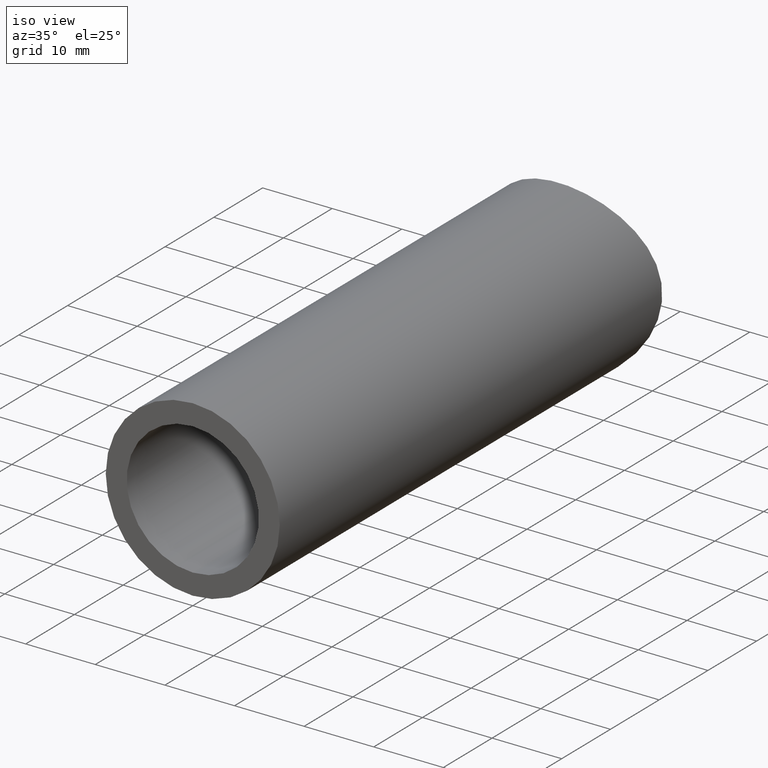
[diagram: clean part render]
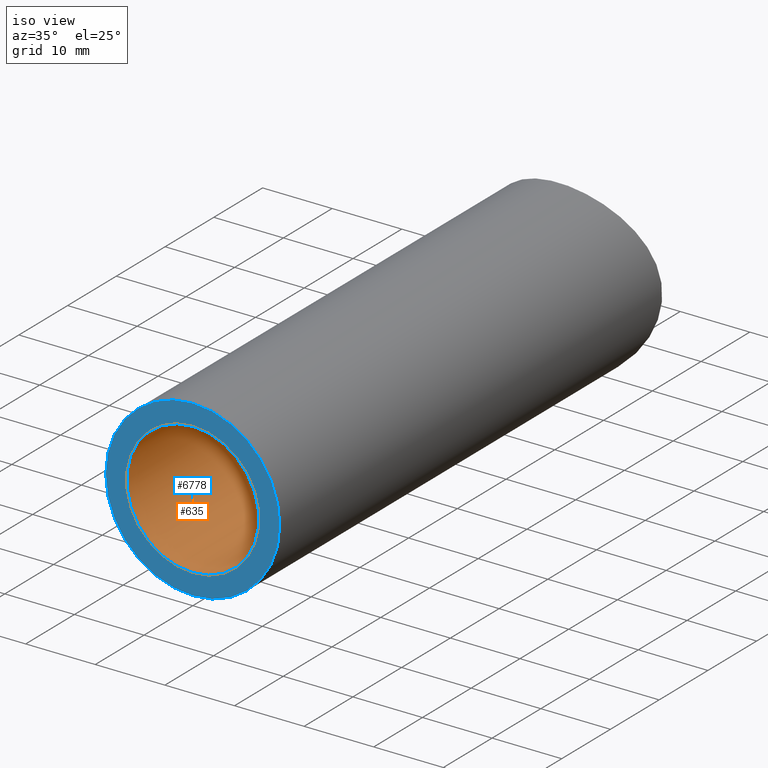
[diagram: same view with the hole feature highlighted: cylindrical wall and planar end face, labeled with their STEP entity ids]
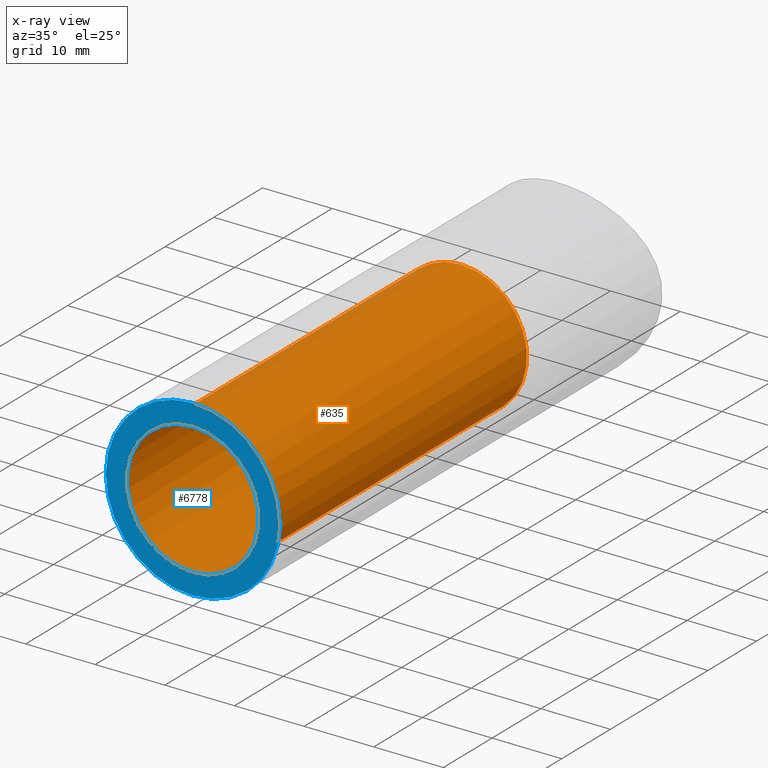
[diagram: x-ray of the same camera — body ghosted, the hole faces saturated]
A machine part, iso view. The highlighted faces form one hole feature of diameter 19 mm: the cylindrical wall (entity #635, orange) and its adjacent planar end face (entity #6778, blue) — they share a circular edge in the B-rep.
The next image is the same camera in x-ray (body ghosted, the hole faces saturated) — the bore reads through the body.
Wall:
#449 = CARTESIAN_POINT ( 'NONE',  ( 0.000000000000000000, 55.00000000000000711, 0.000000000000000000 ) ) ;
#635 = ADVANCED_FACE ( 'NONE', ( #975, #4737 ), #12967, .F. ) ;
#975 = FACE_OUTER_BOUND ( 'NONE', #10401, .T. ) ;
#979 = CARTESIAN_POINT ( 'NONE',  ( 0.000000000000000000, 99.15000000000000568, 0.000000000000000000 ) ) ;
#1289 = CIRCLE ( 'NONE', #7099, 9.500000000000000000 ) ;
#2854 = DIRECTION ( 'NONE',  ( 0.000000000000000000, 1.000000000000000000, 0.000000000000000000 ) ) ;
#2900 = CARTESIAN_POINT ( 'NONE',  ( 0.000000000000000000, 0.000000000000000000, 0.000000000000000000 ) ) ;
#3305 = CIRCLE ( 'NONE', #13916, 9.500000000000000000 ) ;
#4407 = DIRECTION ( 'NONE',  ( 0.000000000000000000, 0.000000000000000000, -1.000000000000000000 ) ) ;
#4677 = CARTESIAN_POINT ( 'NONE',  ( 0.000000000000000000, 0.000000000000000000, 9.500000000000000000 ) ) ;
#4737 = FACE_OUTER_BOUND ( 'NONE', #6456, .T. ) ;
#6456 = EDGE_LOOP ( 'NONE', ( #11790 ) ) ;
#6586 = EDGE_CURVE ( 'NONE', #12865, #12865, #3305, .T. ) ;
#7099 = AXIS2_PLACEMENT_3D ( 'NONE', #2900, #2854, #10891 ) ;
#7239 = DIRECTION ( 'NONE',  ( 0.000000000000000000, 0.000000000000000000, -1.000000000000000000 ) ) ;
#7331 = DIRECTION ( 'NONE',  ( 0.000000000000000000, -1.000000000000000000, 0.000000000000000000 ) ) ;
#7836 = ORIENTED_EDGE ( 'NONE', *, *, #6586, .F. ) ;
#9009 = AXIS2_PLACEMENT_3D ( 'NONE', #979, #9033, #4407 ) ;
#9033 = DIRECTION ( 'NONE',  ( -0.000000000000000000, -1.000000000000000000, -0.000000000000000000 ) ) ;
#9214 = CARTESIAN_POINT ( 'NONE',  ( 0.000000000000000000, 55.00000000000000711, -9.500000000000000000 ) ) ;
#9284 = EDGE_CURVE ( 'NONE', #12214, #12214, #1289, .T. ) ;
#10401 = EDGE_LOOP ( 'NONE', ( #7836 ) ) ;
#10891 = DIRECTION ( 'NONE',  ( 0.000000000000000000, 0.000000000000000000, 1.000000000000000000 ) ) ;
#11790 = ORIENTED_EDGE ( 'NONE', *, *, #9284, .F. ) ;
#12214 = VERTEX_POINT ( 'NONE', #4677 ) ;
#12865 = VERTEX_POINT ( 'NONE', #9214 ) ;
#12967 = CYLINDRICAL_SURFACE ( 'NONE', #9009, 9.500000000000000000 ) ;
#13916 = AXIS2_PLACEMENT_3D ( 'NONE', #449, #7331, #7239 ) ;
End face:
#1224 = DIRECTION ( 'NONE',  ( 0.000000000000000000, -0.000000000000000000, 1.000000000000000000 ) ) ;
#1289 = CIRCLE ( 'NONE', #7099, 9.500000000000000000 ) ;
#2854 = DIRECTION ( 'NONE',  ( 0.000000000000000000, 1.000000000000000000, 0.000000000000000000 ) ) ;
#2900 = CARTESIAN_POINT ( 'NONE',  ( 0.000000000000000000, 0.000000000000000000, 0.000000000000000000 ) ) ;
#3384 = PLANE ( 'NONE',  #7196 ) ;
#3509 = CARTESIAN_POINT ( 'NONE',  ( 0.000000000000000000, 0.000000000000000000, 12.50000000000000000 ) ) ;
#3783 = DIRECTION ( 'NONE',  ( 0.000000000000000000, 1.000000000000000000, 0.000000000000000000 ) ) ;
#4447 = AXIS2_PLACEMENT_3D ( 'NONE', #4730, #3783, #13882 ) ;
#4677 = CARTESIAN_POINT ( 'NONE',  ( 0.000000000000000000, 0.000000000000000000, 9.500000000000000000 ) ) ;
#4730 = CARTESIAN_POINT ( 'NONE',  ( 0.000000000000000000, 0.000000000000000000, 0.000000000000000000 ) ) ;
#5449 = FACE_OUTER_BOUND ( 'NONE', #9208, .T. ) ;
#5572 = ORIENTED_EDGE ( 'NONE', *, *, #9284, .T. ) ;
#6778 = ADVANCED_FACE ( 'NONE', ( #5449, #7577 ), #3384, .F. ) ;
#7099 = AXIS2_PLACEMENT_3D ( 'NONE', #2900, #2854, #10891 ) ;
#7196 = AXIS2_PLACEMENT_3D ( 'NONE', #11509, #11415, #1224 ) ;
#7238 = ORIENTED_EDGE ( 'NONE', *, *, #7652, .F. ) ;
#7577 = FACE_BOUND ( 'NONE', #14496, .T. ) ;
#7652 = EDGE_CURVE ( 'NONE', #9466, #9466, #8830, .T. ) ;
#8830 = CIRCLE ( 'NONE', #4447, 12.50000000000000000 ) ;
#9208 = EDGE_LOOP ( 'NONE', ( #7238 ) ) ;
#9284 = EDGE_CURVE ( 'NONE', #12214, #12214, #1289, .T. ) ;
#9466 = VERTEX_POINT ( 'NONE', #3509 ) ;
#10891 = DIRECTION ( 'NONE',  ( 0.000000000000000000, 0.000000000000000000, 1.000000000000000000 ) ) ;
#11415 = DIRECTION ( 'NONE',  ( 0.000000000000000000, 1.000000000000000000, 0.000000000000000000 ) ) ;
#11509 = CARTESIAN_POINT ( 'NONE',  ( 0.000000000000000000, 0.000000000000000000, 0.000000000000000000 ) ) ;
#12214 = VERTEX_POINT ( 'NONE', #4677 ) ;
#13882 = DIRECTION ( 'NONE',  ( 0.000000000000000000, 0.000000000000000000, 1.000000000000000000 ) ) ;
#14496 = EDGE_LOOP ( 'NONE', ( #5572 ) ) ;